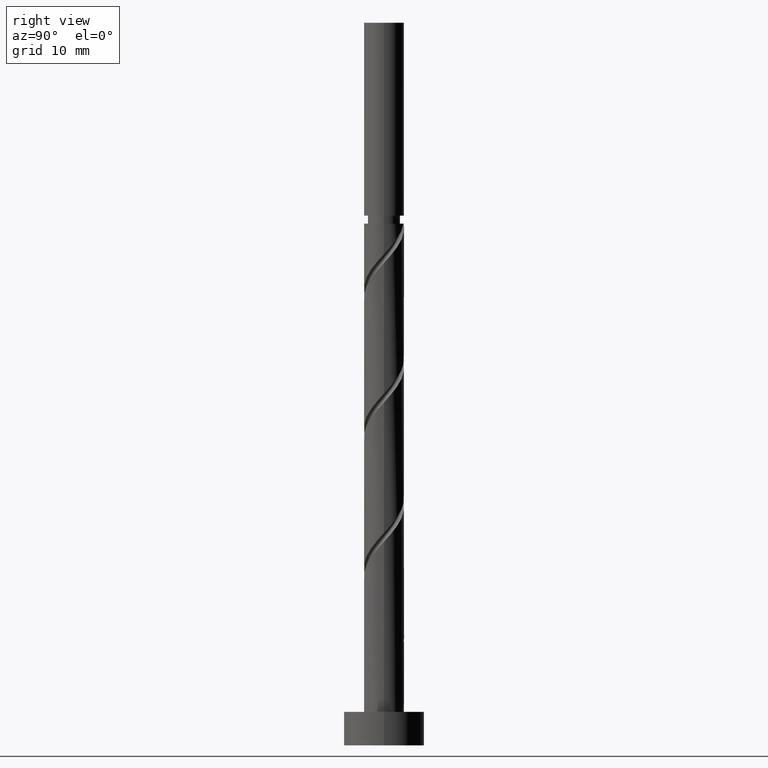
[diagram: clean part render]
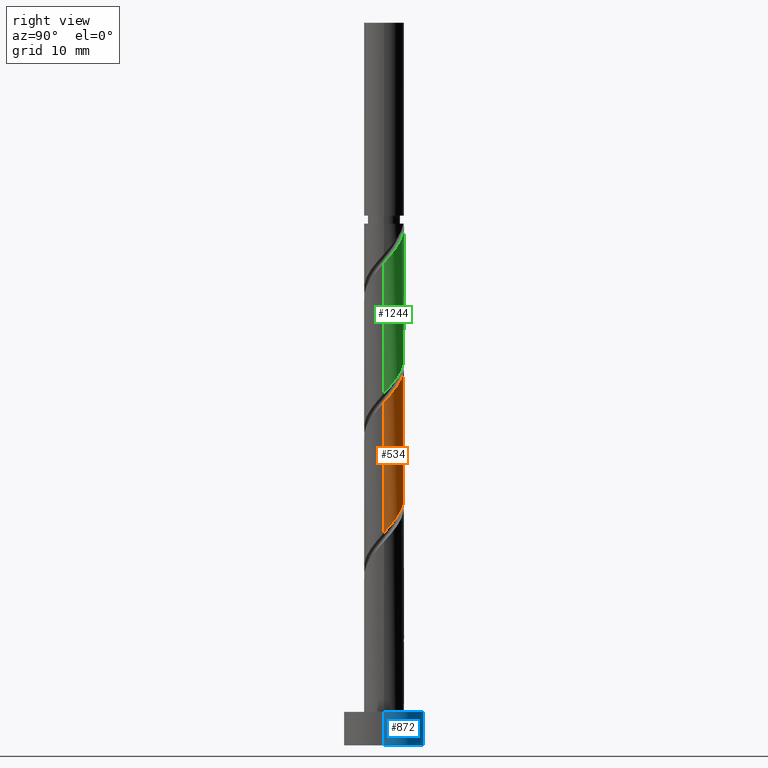
[diagram: same view with three faces highlighted in distinct colors, each labeled with its STEP entity id]
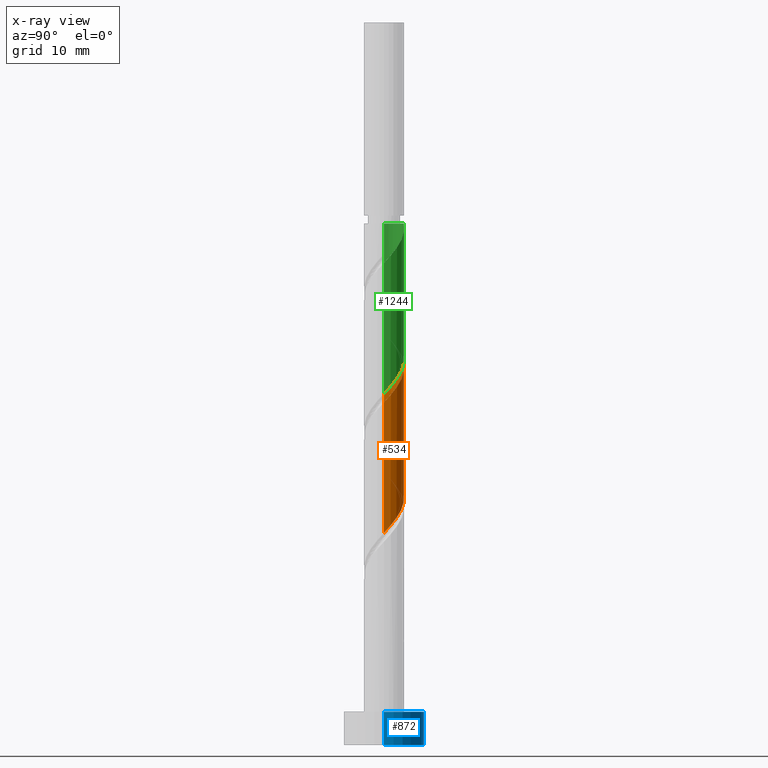
[diagram: x-ray of the same camera — body ghosted, the three highlighted faces saturated]
A machine part, right view with three faces highlighted in distinct colors.
The next image is the same camera in x-ray (body ghosted, the three faces saturated) — at least one of them is partly hidden behind the body in this view.
Their STEP definitions:

[orange] entity #534 — the highlighted cylindrical surface (edge-blend (fillet) strip) has radius 3 mm, axis along (-0, -0, -1).
#16 = CARTESIAN_POINT ( 'NONE',  ( -2.729413328510883030, 1.245111594254575627, 60.26422995603915211 ) ) ;
#72 =( BOUNDED_CURVE ( )  B_SPLINE_CURVE ( 2, ( #1352, #621, #142, #234, #482, #488, #253, #384, #118, #857, #361, #241, #849, #1471, #1360, #1237, #1115, #1245, #16, #627, #1109, #1123, #1346 ),
 .UNSPECIFIED., .F., .T. ) 
 B_SPLINE_CURVE_WITH_KNOTS ( ( 3, 2, 2, 2, 2, 2, 2, 2, 2, 2, 2, 3 ),
 ( 0.4295322023138552492, 0.4375000000000000000, 0.4499999999999999556, 0.4625000000000000222, 0.4749999999999999778, 0.4875000000000000444, 0.5000000000000000000, 0.5124999999999999556, 0.5250000000000000222, 0.5374999999999999778, 0.5500000000000000444, 0.5545322023138553602 ),
 .UNSPECIFIED. ) 
 CURVE ( )  GEOMETRIC_REPRESENTATION_ITEM ( )  RATIONAL_B_SPLINE_CURVE ( ( 0.9039174447099327381, 0.9019565955404622581, 0.9090909090909106149, 0.8978984914501266790, 0.9090909090909106149, 0.8978984914501266790, 0.9090909090909106149, 0.8978984914501266790, 0.9090909090909106149, 0.8978984914501266790, 0.9090909090909106149, 0.8978984914501266790, 0.9090909090909106149, 0.8978984914501266790, 0.9090909090909106149, 0.8978984914501266790, 0.9090909090909106149, 0.8978984914501266790, 0.9090909090909106149, 0.8978984914501266790, 0.9090909090909106149, 0.9050328050005749247, 0.9039174447099328491 ) ) 
 REPRESENTATION_ITEM ( '' )  );
#99 = CARTESIAN_POINT ( 'NONE',  ( -3.000000000000000000, 3.373448126221336110E-15, 42.17903239750943101 ) ) ;
#113 = EDGE_LOOP ( 'NONE', ( #1217, #719, #756, #237 ) ) ;
#115 = AXIS2_PLACEMENT_3D ( 'NONE', #1575, #1464, #156 ) ;
#118 = CARTESIAN_POINT ( 'NONE',  ( 1.245111594254576515, 2.729413328510883474, 55.05589662270581641 ) ) ;
#138 = EDGE_CURVE ( 'NONE', #1521, #885, #1221, .T. ) ;
#142 = CARTESIAN_POINT ( 'NONE',  ( 2.940000000000004388, 0.5969924622639718459, 51.93089662270580931 ) ) ;
#156 = DIRECTION ( 'NONE',  ( -1.000000000000000000, 0.000000000000000000, 0.000000000000000000 ) ) ;
#198 = CARTESIAN_POINT ( 'NONE',  ( -0.8128149918040481481, 2.926619631508482477, 37.86839662270583773 ) ) ;
#206 = DIRECTION ( 'NONE',  ( -0.000000000000000000, -0.000000000000000000, -1.000000000000000000 ) ) ;
#207 = CARTESIAN_POINT ( 'NONE',  ( 3.000000000000000444, 0.1709212123392966076, 31.95187682005003893 ) ) ;
#234 = CARTESIAN_POINT ( 'NONE',  ( 2.845445682986358804, 1.062642716818109401, 52.45172995603915211 ) ) ;
#237 = ORIENTED_EDGE ( 'NONE', *, *, #1027, .F. ) ;
#241 = CARTESIAN_POINT ( 'NONE',  ( -0.1313422077098341523, 3.034554317013650859, 56.61839662270583773 ) ) ;
#253 = CARTESIAN_POINT ( 'NONE',  ( 2.027606598413815853, 2.211065689225171216, 54.01422995603915922 ) ) ;
#299 = CARTESIAN_POINT ( 'NONE',  ( -2.377805000122526824, 1.889924352937060847, 39.95172995603917343 ) ) ;
#343 = CARTESIAN_POINT ( 'NONE',  ( -1.245111594254573628, 2.729413328510879033, 38.38922995603915211 ) ) ;
#361 = CARTESIAN_POINT ( 'NONE',  ( 0.3407363920471080942, 2.980586974261068001, 56.09756328937249492 ) ) ;
#384 = CARTESIAN_POINT ( 'NONE',  ( 1.677408196705101773, 2.532207025513280474, 54.53506328937248782 ) ) ;
#415 = EDGE_CURVE ( 'NONE', #1045, #944, #72, .T. ) ;
#466 = CARTESIAN_POINT ( 'NONE',  ( 1.889924352937061292, 2.377805000122526824, 34.74339662270583773 ) ) ;
#482 = CARTESIAN_POINT ( 'NONE',  ( 2.611625341554443924, 1.476283534877585790, 52.97256328937249492 ) ) ;
#488 = CARTESIAN_POINT ( 'NONE',  ( 2.377805000122529933, 1.889924352937062180, 53.49339662270583062 ) ) ;
#529 = CARTESIAN_POINT ( 'NONE',  ( -3.000000000000000000, 3.373448126221336110E-15, 42.17903239750943101 ) ) ;
#534 = ADVANCED_FACE ( 'NONE', ( #1100 ), #1215, .T. ) ;
#543 = VECTOR ( 'NONE', #831, 1000.000000000000000 ) ;
#570 = VECTOR ( 'NONE', #206, 1000.000000000000000 ) ;
#581 = CARTESIAN_POINT ( 'NONE',  ( 0.5969924622639727341, 2.940000000000000835, 36.30589662270583062 ) ) ;
#594 = CARTESIAN_POINT ( 'NONE',  ( -3.000000000000000444, 0.000000000000000000, 108.0000000000000000 ) ) ;
#598 = CARTESIAN_POINT ( 'NONE',  ( 2.729413328510879477, 1.245111594254572740, 33.18089662270582352 ) ) ;
#621 = CARTESIAN_POINT ( 'NONE',  ( 3.000000000000004885, 0.3015113445777645729, 51.60039875664339348 ) ) ;
#627 = CARTESIAN_POINT ( 'NONE',  ( -2.926619631508485142, 0.8128149918040495914, 60.78506328937248782 ) ) ;
#706 = CARTESIAN_POINT ( 'NONE',  ( -0.3407363920471063734, 2.980586974261062227, 37.34756328937249492 ) ) ;
#716 = CARTESIAN_POINT ( 'NONE',  ( 2.926619631508482477, 0.8128149918040477040, 32.66006328937250203 ) ) ;
#719 = ORIENTED_EDGE ( 'NONE', *, *, #744, .T. ) ;
#744 = EDGE_CURVE ( 'NONE', #1045, #885, #1540, .T. ) ;
#756 = ORIENTED_EDGE ( 'NONE', *, *, #138, .F. ) ;
#782 = CARTESIAN_POINT ( 'NONE',  ( -2.940000000000000835, 0.5969924622639721790, 41.51422995603914501 ) ) ;
#831 = DIRECTION ( 'NONE',  ( -0.000000000000000000, -0.000000000000000000, -1.000000000000000000 ) ) ;
#835 = CARTESIAN_POINT ( 'NONE',  ( 1.062642716818109401, 2.845445682986354363, 35.78506328937249492 ) ) ;
#844 = CARTESIAN_POINT ( 'NONE',  ( 2.211065689225169439, 2.027606598413811856, 34.22256328937250203 ) ) ;
#849 = CARTESIAN_POINT ( 'NONE',  ( -0.5969924622639715128, 2.940000000000004388, 57.13922995603915922 ) ) ;
#857 = CARTESIAN_POINT ( 'NONE',  ( 0.8128149918040501465, 2.926619631508485142, 55.57672995603916632 ) ) ;
#885 = VERTEX_POINT ( 'NONE', #1333 ) ;
#933 = CARTESIAN_POINT ( 'NONE',  ( 0.1313422077098352625, 3.034554317013646862, 36.82672995603915922 ) ) ;
#944 = VERTEX_POINT ( 'NONE', #1218 ) ;
#957 = CARTESIAN_POINT ( 'NONE',  ( -1.677408196705098886, 2.532207025513277809, 38.91006328937250913 ) ) ;
#1020 = CARTESIAN_POINT ( 'NONE',  ( -3.000000000000000444, 0.3015113445777653500, 41.84472782210158925 ) ) ;
#1027 = EDGE_CURVE ( 'NONE', #944, #1521, #1459, .T. ) ;
#1045 = VERTEX_POINT ( 'NONE', #1067 ) ;
#1067 = CARTESIAN_POINT ( 'NONE',  ( 3.000000000000004441, 2.129020595215229578E-15, 51.26609418123555173 ) ) ;
#1072 = CARTESIAN_POINT ( 'NONE',  ( 3.000000000000000000, -3.703296387451867164E-15, 31.76236573084275605 ) ) ;
#1100 = FACE_OUTER_BOUND ( 'NONE', #113, .T. ) ;
#1109 = CARTESIAN_POINT ( 'NONE',  ( -2.980586974261068001, 0.3407363920471075391, 61.30589662270583773 ) ) ;
#1115 = CARTESIAN_POINT ( 'NONE',  ( -2.211065689225171660, 2.027606598413815409, 59.22256328937248782 ) ) ;
#1123 = CARTESIAN_POINT ( 'NONE',  ( -3.000000000000005773, 0.1709212123392938598, 61.49324975869496512 ) ) ;
#1215 = CYLINDRICAL_SURFACE ( 'NONE', #115, 3.000000000000000444 ) ;
#1217 = ORIENTED_EDGE ( 'NONE', *, *, #415, .F. ) ;
#1218 = CARTESIAN_POINT ( 'NONE',  ( -3.000000000000004885, -9.895447836915852730E-16, 61.68276084790223024 ) ) ;
#1221 =( BOUNDED_CURVE ( )  B_SPLINE_CURVE ( 2, ( #529, #1020, #782, #1269, #1277, #299, #1427, #957, #343, #198, #706, #933, #581, #835, #1318, #466, #844, #1531, #598, #716, #1310, #207, #1072 ),
 .UNSPECIFIED., .F., .T. ) 
 B_SPLINE_CURVE_WITH_KNOTS ( ( 3, 2, 2, 2, 2, 2, 2, 2, 2, 2, 2, 3 ),
 ( 0.6795322023138552492, 0.6875000000000000000, 0.6999999999999999556, 0.7125000000000000222, 0.7249999999999999778, 0.7375000000000000444, 0.7500000000000000000, 0.7624999999999999556, 0.7750000000000000222, 0.7874999999999999778, 0.8000000000000000444, 0.8045322023138552492 ),
 .UNSPECIFIED. ) 
 CURVE ( )  GEOMETRIC_REPRESENTATION_ITEM ( )  RATIONAL_B_SPLINE_CURVE ( ( 0.9039174447099269649, 0.9019565955404564850, 0.9090909090909048418, 0.8978984914501209058, 0.9090909090909048418, 0.8978984914501209058, 0.9090909090909048418, 0.8978984914501209058, 0.9090909090909048418, 0.8978984914501209058, 0.9090909090909048418, 0.8978984914501209058, 0.9090909090909048418, 0.8978984914501209058, 0.9090909090909048418, 0.8978984914501209058, 0.9090909090909048418, 0.8978984914501209058, 0.9090909090909048418, 0.8978984914501209058, 0.9090909090909048418, 0.9050328050005691516, 0.9039174447099269649 ) ) 
 REPRESENTATION_ITEM ( '' )  );
#1237 = CARTESIAN_POINT ( 'NONE',  ( -1.889924352937062402, 2.377805000122529933, 58.70172995603915211 ) ) ;
#1245 = CARTESIAN_POINT ( 'NONE',  ( -2.532207025513280918, 1.677408196705101107, 59.74339662270583773 ) ) ;
#1269 = CARTESIAN_POINT ( 'NONE',  ( -2.845445682986354807, 1.062642716818108735, 40.99339662270583062 ) ) ;
#1277 = CARTESIAN_POINT ( 'NONE',  ( -2.611625341554439483, 1.476283534877585124, 40.47256328937248071 ) ) ;
#1310 = CARTESIAN_POINT ( 'NONE',  ( 2.980586974261063116, 0.3407363920471058183, 32.13922995603916632 ) ) ;
#1318 = CARTESIAN_POINT ( 'NONE',  ( 1.476283534877585346, 2.611625341554439483, 35.26422995603916632 ) ) ;
#1333 = CARTESIAN_POINT ( 'NONE',  ( 3.000000000000000000, -3.703296387451867164E-15, 31.76236573084275605 ) ) ;
#1346 = CARTESIAN_POINT ( 'NONE',  ( -3.000000000000004885, -9.895447836915852730E-16, 61.68276084790223024 ) ) ;
#1352 = CARTESIAN_POINT ( 'NONE',  ( 3.000000000000004441, 2.129020595215229578E-15, 51.26609418123555884 ) ) ;
#1360 = CARTESIAN_POINT ( 'NONE',  ( -1.476283534877586012, 2.611625341554443924, 58.18089662270583062 ) ) ;
#1424 = CARTESIAN_POINT ( 'NONE',  ( 3.000000000000000444, 3.673940397442060361E-16, 108.0000000000000000 ) ) ;
#1427 = CARTESIAN_POINT ( 'NONE',  ( -2.027606598413812300, 2.211065689225168551, 39.43089662270583062 ) ) ;
#1459 = LINE ( 'NONE', #594, #543 ) ;
#1464 = DIRECTION ( 'NONE',  ( -0.000000000000000000, -0.000000000000000000, -1.000000000000000000 ) ) ;
#1471 = CARTESIAN_POINT ( 'NONE',  ( -1.062642716818109623, 2.845445682986358804, 57.66006328937250203 ) ) ;
#1521 = VERTEX_POINT ( 'NONE', #99 ) ;
#1531 = CARTESIAN_POINT ( 'NONE',  ( 2.532207025513277809, 1.677408196705097998, 33.70172995603916632 ) ) ;
#1540 = LINE ( 'NONE', #1424, #570 ) ;
#1575 = CARTESIAN_POINT ( 'NONE',  ( 0.000000000000000000, 0.000000000000000000, 108.0000000000000000 ) ) ;

[blue] entity #872 — the highlighted cylindrical surface (partial cylindrical patch) has radius 6 mm, axis along (-0, -0, -1).
#8 = CARTESIAN_POINT ( 'NONE',  ( 6.000000000000000888, 7.347880794884120722E-16, 5.000000000000000000 ) ) ;
#40 = CARTESIAN_POINT ( 'NONE',  ( -6.000000000000000888, 0.000000000000000000, 0.000000000000000000 ) ) ;
#50 = CIRCLE ( 'NONE', #1425, 6.000000000000000888 ) ;
#175 = EDGE_CURVE ( 'NONE', #470, #1192, #50, .T. ) ;
#221 = EDGE_CURVE ( 'NONE', #1183, #1192, #941, .T. ) ;
#332 = DIRECTION ( 'NONE',  ( -0.000000000000000000, -0.000000000000000000, -1.000000000000000000 ) ) ;
#372 = ORIENTED_EDGE ( 'NONE', *, *, #175, .T. ) ;
#377 = CARTESIAN_POINT ( 'NONE',  ( 6.000000000000000888, 7.347880794884120722E-16, 0.000000000000000000 ) ) ;
#379 = EDGE_CURVE ( 'NONE', #794, #470, #448, .T. ) ;
#389 = DIRECTION ( 'NONE',  ( 0.000000000000000000, 0.000000000000000000, 1.000000000000000000 ) ) ;
#437 = DIRECTION ( 'NONE',  ( -0.000000000000000000, -0.000000000000000000, -1.000000000000000000 ) ) ;
#448 = LINE ( 'NONE', #817, #1104 ) ;
#462 = CARTESIAN_POINT ( 'NONE',  ( 0.000000000000000000, 0.000000000000000000, 5.000000000000000000 ) ) ;
#470 = VERTEX_POINT ( 'NONE', #377 ) ;
#485 = EDGE_LOOP ( 'NONE', ( #509, #1413, #372, #1479 ) ) ;
#509 = ORIENTED_EDGE ( 'NONE', *, *, #1547, .F. ) ;
#675 = CARTESIAN_POINT ( 'NONE',  ( -6.000000000000000888, 0.000000000000000000, 5.000000000000000000 ) ) ;
#688 = DIRECTION ( 'NONE',  ( 1.000000000000000000, 0.000000000000000000, 0.000000000000000000 ) ) ;
#697 = CARTESIAN_POINT ( 'NONE',  ( 0.000000000000000000, 0.000000000000000000, 0.000000000000000000 ) ) ;
#701 = CYLINDRICAL_SURFACE ( 'NONE', #797, 6.000000000000000888 ) ;
#765 = AXIS2_PLACEMENT_3D ( 'NONE', #861, #389, #1120 ) ;
#794 = VERTEX_POINT ( 'NONE', #8 ) ;
#797 = AXIS2_PLACEMENT_3D ( 'NONE', #462, #1212, #953 ) ;
#817 = CARTESIAN_POINT ( 'NONE',  ( 6.000000000000000888, 7.347880794884120722E-16, 5.000000000000000000 ) ) ;
#861 = CARTESIAN_POINT ( 'NONE',  ( 0.000000000000000000, 0.000000000000000000, 5.000000000000000000 ) ) ;
#872 = ADVANCED_FACE ( 'NONE', ( #1571 ), #701, .T. ) ;
#873 = CIRCLE ( 'NONE', #765, 6.000000000000000888 ) ;
#941 = LINE ( 'NONE', #1567, #1274 ) ;
#953 = DIRECTION ( 'NONE',  ( -1.000000000000000000, 0.000000000000000000, 0.000000000000000000 ) ) ;
#1104 = VECTOR ( 'NONE', #332, 1000.000000000000000 ) ;
#1120 = DIRECTION ( 'NONE',  ( 1.000000000000000000, 0.000000000000000000, 0.000000000000000000 ) ) ;
#1183 = VERTEX_POINT ( 'NONE', #675 ) ;
#1192 = VERTEX_POINT ( 'NONE', #40 ) ;
#1212 = DIRECTION ( 'NONE',  ( -0.000000000000000000, -0.000000000000000000, -1.000000000000000000 ) ) ;
#1274 = VECTOR ( 'NONE', #437, 1000.000000000000000 ) ;
#1413 = ORIENTED_EDGE ( 'NONE', *, *, #379, .T. ) ;
#1425 = AXIS2_PLACEMENT_3D ( 'NONE', #697, #1445, #688 ) ;
#1445 = DIRECTION ( 'NONE',  ( 0.000000000000000000, 0.000000000000000000, 1.000000000000000000 ) ) ;
#1479 = ORIENTED_EDGE ( 'NONE', *, *, #221, .F. ) ;
#1547 = EDGE_CURVE ( 'NONE', #794, #1183, #873, .T. ) ;
#1567 = CARTESIAN_POINT ( 'NONE',  ( -6.000000000000000888, 0.000000000000000000, 5.000000000000000000 ) ) ;
#1571 = FACE_OUTER_BOUND ( 'NONE', #485, .T. ) ;

[green] entity #1244 — the highlighted cylindrical surface (edge-blend (fillet) strip) has radius 3 mm, axis along (-0, -0, -1).
#3 = EDGE_LOOP ( 'NONE', ( #728, #541, #1025, #451, #48 ) ) ;
#14 = CARTESIAN_POINT ( 'NONE',  ( -0.3407363920471063734, 2.980586974261062227, 58.18089662270583062 ) ) ;
#27 = AXIS2_PLACEMENT_3D ( 'NONE', #1559, #561, #324 ) ;
#48 = ORIENTED_EDGE ( 'NONE', *, *, #347, .T. ) ;
#49 = EDGE_CURVE ( 'NONE', #202, #1086, #281, .T. ) ;
#90 = CARTESIAN_POINT ( 'NONE',  ( 3.000000000000004885, 5.847310085450277599E-16, 72.09942751456891585 ) ) ;
#119 =( BOUNDED_CURVE ( )  B_SPLINE_CURVE ( 2, ( #989, #1220, #1114, #496, #1462, #738, #1573, #487, #1475, #1351, #14, #140, #1098, #863, #375, #1107, #1357, #359, #1342, #980, #723, #125, #1228 ),
 .UNSPECIFIED., .F., .T. ) 
 B_SPLINE_CURVE_WITH_KNOTS ( ( 3, 2, 2, 2, 2, 2, 2, 2, 2, 2, 2, 3 ),
 ( 0.4295322023138552492, 0.4375000000000000000, 0.4500000000000000111, 0.4625000000000000222, 0.4749999999999999778, 0.4874999999999999889, 0.5000000000000000000, 0.5124999999999999556, 0.5250000000000000222, 0.5374999999999999778, 0.5500000000000000444, 0.5545322023138552492 ),
 .UNSPECIFIED. ) 
 CURVE ( )  GEOMETRIC_REPRESENTATION_ITEM ( )  RATIONAL_B_SPLINE_CURVE ( ( 0.9039174447099271870, 0.9019565955404564850, 0.9090909090909048418, 0.8978984914501209058, 0.9090909090909048418, 0.8978984914501209058, 0.9090909090909048418, 0.8978984914501209058, 0.9090909090909048418, 0.8978984914501209058, 0.9090909090909048418, 0.8978984914501209058, 0.9090909090909048418, 0.8978984914501209058, 0.9090909090909048418, 0.8978984914501209058, 0.9090909090909048418, 0.8978984914501209058, 0.9090909090909048418, 0.8978984914501209058, 0.9090909090909048418, 0.9050328050005691516, 0.9039174447099269649 ) ) 
 REPRESENTATION_ITEM ( '' )  );
#125 = CARTESIAN_POINT ( 'NONE',  ( 3.000000000000000444, 0.1709212123392966076, 52.78521015338336042 ) ) ;
#140 = CARTESIAN_POINT ( 'NONE',  ( 0.1313422077098352625, 3.034554317013646862, 57.66006328937250913 ) ) ;
#171 = CARTESIAN_POINT ( 'NONE',  ( -3.000000000000000444, 0.000000000000000000, 108.0000000000000000 ) ) ;
#185 = DIRECTION ( 'NONE',  ( -0.000000000000000000, -0.000000000000000000, -1.000000000000000000 ) ) ;
#201 = FACE_OUTER_BOUND ( 'NONE', #3, .T. ) ;
#202 = VERTEX_POINT ( 'NONE', #1417 ) ;
#214 = CARTESIAN_POINT ( 'NONE',  ( 1.677408196705101773, 2.532207025513280474, 75.36839662270583062 ) ) ;
#281 = LINE ( 'NONE', #171, #1074 ) ;
#283 = EDGE_CURVE ( 'NONE', #860, #1553, #1054, .T. ) ;
#315 = CARTESIAN_POINT ( 'NONE',  ( 3.000000000000000444, 3.673940397442060361E-16, 108.0000000000000000 ) ) ;
#317 = DIRECTION ( 'NONE',  ( -1.000000000000000000, 0.000000000000000000, 0.000000000000000000 ) ) ;
#324 = DIRECTION ( 'NONE',  ( -1.000000000000000000, 0.000000000000000000, 0.000000000000000000 ) ) ;
#331 = CARTESIAN_POINT ( 'NONE',  ( 2.845445682986358804, 1.062642716818109401, 73.28506328937250203 ) ) ;
#347 = EDGE_CURVE ( 'NONE', #202, #1332, #1250, .T. ) ;
#359 = CARTESIAN_POINT ( 'NONE',  ( 2.532207025513277809, 1.677408196705097998, 54.53506328937250203 ) ) ;
#375 = CARTESIAN_POINT ( 'NONE',  ( 1.476283534877585346, 2.611625341554439483, 56.09756328937249492 ) ) ;
#451 = ORIENTED_EDGE ( 'NONE', *, *, #49, .F. ) ;
#487 = CARTESIAN_POINT ( 'NONE',  ( -1.677408196705098886, 2.532207025513277809, 59.74339662270583062 ) ) ;
#496 = CARTESIAN_POINT ( 'NONE',  ( -2.845445682986354807, 1.062642716818108735, 61.82672995603918054 ) ) ;
#541 = ORIENTED_EDGE ( 'NONE', *, *, #283, .T. ) ;
#561 = DIRECTION ( 'NONE',  ( -0.000000000000000000, -0.000000000000000000, -1.000000000000000000 ) ) ;
#597 = CARTESIAN_POINT ( 'NONE',  ( 2.027606598413815853, 2.211065689225171216, 74.84756328937250203 ) ) ;
#611 = CARTESIAN_POINT ( 'NONE',  ( -0.5969924622639719569, 2.940000000000007496, 77.97256328937245939 ) ) ;
#641 = CARTESIAN_POINT ( 'NONE',  ( 3.000000000000000000, -3.703296387451867164E-15, 52.59569906417608109 ) ) ;
#653 =( BOUNDED_CURVE ( )  B_SPLINE_CURVE ( 2, ( #90, #1070, #1549, #331, #1453, #825, #597, #214, #1197, #1326, #842, #1336, #611 ),
 .UNSPECIFIED., .F., .T. ) 
 B_SPLINE_CURVE_WITH_KNOTS ( ( 3, 2, 2, 2, 2, 2, 3 ),
 ( 0.6795322023138553602, 0.6875000000000000000, 0.6999999999999999556, 0.7125000000000000222, 0.7249999999999998668, 0.7374999999999999334, 0.7499999999999998890 ),
 .UNSPECIFIED. ) 
 CURVE ( )  GEOMETRIC_REPRESENTATION_ITEM ( )  RATIONAL_B_SPLINE_CURVE ( ( 0.9039174447099328491, 0.9019565955404623692, 0.9090909090909106149, 0.8978984914501266790, 0.9090909090909106149, 0.8978984914501266790, 0.9090909090909106149, 0.8978984914501266790, 0.9090909090909106149, 0.8978984914501266790, 0.9090909090909106149, 0.8978984914501267900, 0.9090909090909105039 ) ) 
 REPRESENTATION_ITEM ( '' )  );
#708 = DIRECTION ( 'NONE',  ( -0.000000000000000000, -0.000000000000000000, -1.000000000000000000 ) ) ;
#723 = CARTESIAN_POINT ( 'NONE',  ( 2.980586974261063116, 0.3407363920471058183, 52.97256328937248782 ) ) ;
#728 = ORIENTED_EDGE ( 'NONE', *, *, #785, .F. ) ;
#738 = CARTESIAN_POINT ( 'NONE',  ( -2.377805000122526824, 1.889924352937060847, 60.78506328937250203 ) ) ;
#764 = AXIS2_PLACEMENT_3D ( 'NONE', #1094, #708, #317 ) ;
#785 = EDGE_CURVE ( 'NONE', #860, #1332, #653, .T. ) ;
#819 = EDGE_CURVE ( 'NONE', #1086, #1553, #119, .T. ) ;
#825 = CARTESIAN_POINT ( 'NONE',  ( 2.377805000122529933, 1.889924352937062180, 74.32672995603914501 ) ) ;
#842 = CARTESIAN_POINT ( 'NONE',  ( 0.3407363920471080942, 2.980586974261068001, 76.93089662270581641 ) ) ;
#860 = VERTEX_POINT ( 'NONE', #1554 ) ;
#863 = CARTESIAN_POINT ( 'NONE',  ( 1.062642716818109401, 2.845445682986354363, 56.61839662270583062 ) ) ;
#869 = CARTESIAN_POINT ( 'NONE',  ( -0.5969924622639718459, 2.940000000000007496, 77.97256328937245939 ) ) ;
#980 = CARTESIAN_POINT ( 'NONE',  ( 2.926619631508482477, 0.8128149918040477040, 53.49339662270583773 ) ) ;
#989 = CARTESIAN_POINT ( 'NONE',  ( -2.999999999999999556, 1.829158539551123741E-15, 63.01236573084274539 ) ) ;
#1025 = ORIENTED_EDGE ( 'NONE', *, *, #819, .F. ) ;
#1054 = LINE ( 'NONE', #315, #1330 ) ;
#1070 = CARTESIAN_POINT ( 'NONE',  ( 3.000000000000003109, 0.3015113445777686252, 72.43373208997677182 ) ) ;
#1074 = VECTOR ( 'NONE', #185, 1000.000000000000000 ) ;
#1078 = CARTESIAN_POINT ( 'NONE',  ( -3.000000000000000000, 1.829158539551123741E-15, 63.01236573084274539 ) ) ;
#1086 = VERTEX_POINT ( 'NONE', #1078 ) ;
#1094 = CARTESIAN_POINT ( 'NONE',  ( 0.000000000000000000, 0.000000000000000000, 108.0000000000000000 ) ) ;
#1098 = CARTESIAN_POINT ( 'NONE',  ( 0.5969924622639727341, 2.940000000000000835, 57.13922995603915922 ) ) ;
#1107 = CARTESIAN_POINT ( 'NONE',  ( 1.889924352937061292, 2.377805000122526824, 55.57672995603916632 ) ) ;
#1114 = CARTESIAN_POINT ( 'NONE',  ( -2.940000000000000835, 0.5969924622639721790, 62.34756328937249492 ) ) ;
#1189 = DIRECTION ( 'NONE',  ( -0.000000000000000000, -0.000000000000000000, -1.000000000000000000 ) ) ;
#1197 = CARTESIAN_POINT ( 'NONE',  ( 1.245111594254576515, 2.729413328510883474, 75.88922995603917343 ) ) ;
#1220 = CARTESIAN_POINT ( 'NONE',  ( -3.000000000000000444, 0.3015113445777667378, 62.67806115543492496 ) ) ;
#1228 = CARTESIAN_POINT ( 'NONE',  ( 3.000000000000000000, -3.703296387451867164E-15, 52.59569906417608109 ) ) ;
#1244 = ADVANCED_FACE ( 'NONE', ( #201 ), #1569, .T. ) ;
#1250 = CIRCLE ( 'NONE', #27, 3.000000000000003553 ) ;
#1326 = CARTESIAN_POINT ( 'NONE',  ( 0.8128149918040501465, 2.926619631508485142, 76.41006328937250203 ) ) ;
#1330 = VECTOR ( 'NONE', #1189, 1000.000000000000000 ) ;
#1332 = VERTEX_POINT ( 'NONE', #869 ) ;
#1336 = CARTESIAN_POINT ( 'NONE',  ( -0.1313422077098299057, 3.034554317013650415, 77.45172995603915922 ) ) ;
#1342 = CARTESIAN_POINT ( 'NONE',  ( 2.729413328510879477, 1.245111594254572740, 54.01422995603914501 ) ) ;
#1351 = CARTESIAN_POINT ( 'NONE',  ( -0.8128149918040481481, 2.926619631508482477, 58.70172995603917343 ) ) ;
#1357 = CARTESIAN_POINT ( 'NONE',  ( 2.211065689225169439, 2.027606598413811856, 55.05589662270582352 ) ) ;
#1417 = CARTESIAN_POINT ( 'NONE',  ( -3.000000000000003997, 0.000000000000000000, 77.97256328937248782 ) ) ;
#1453 = CARTESIAN_POINT ( 'NONE',  ( 2.611625341554443924, 1.476283534877585790, 73.80589662270583062 ) ) ;
#1462 = CARTESIAN_POINT ( 'NONE',  ( -2.611625341554439483, 1.476283534877585124, 61.30589662270583062 ) ) ;
#1475 = CARTESIAN_POINT ( 'NONE',  ( -1.245111594254573628, 2.729413328510879033, 59.22256328937248782 ) ) ;
#1549 = CARTESIAN_POINT ( 'NONE',  ( 2.940000000000004388, 0.5969924622639718459, 72.76422995603917343 ) ) ;
#1553 = VERTEX_POINT ( 'NONE', #641 ) ;
#1554 = CARTESIAN_POINT ( 'NONE',  ( 3.000000000000004885, 5.847310085450277599E-16, 72.09942751456891585 ) ) ;
#1559 = CARTESIAN_POINT ( 'NONE',  ( 0.000000000000000000, 0.000000000000000000, 77.97256328937248782 ) ) ;
#1569 = CYLINDRICAL_SURFACE ( 'NONE', #764, 3.000000000000000444 ) ;
#1573 = CARTESIAN_POINT ( 'NONE',  ( -2.027606598413812300, 2.211065689225168551, 60.26422995603915211 ) ) ;